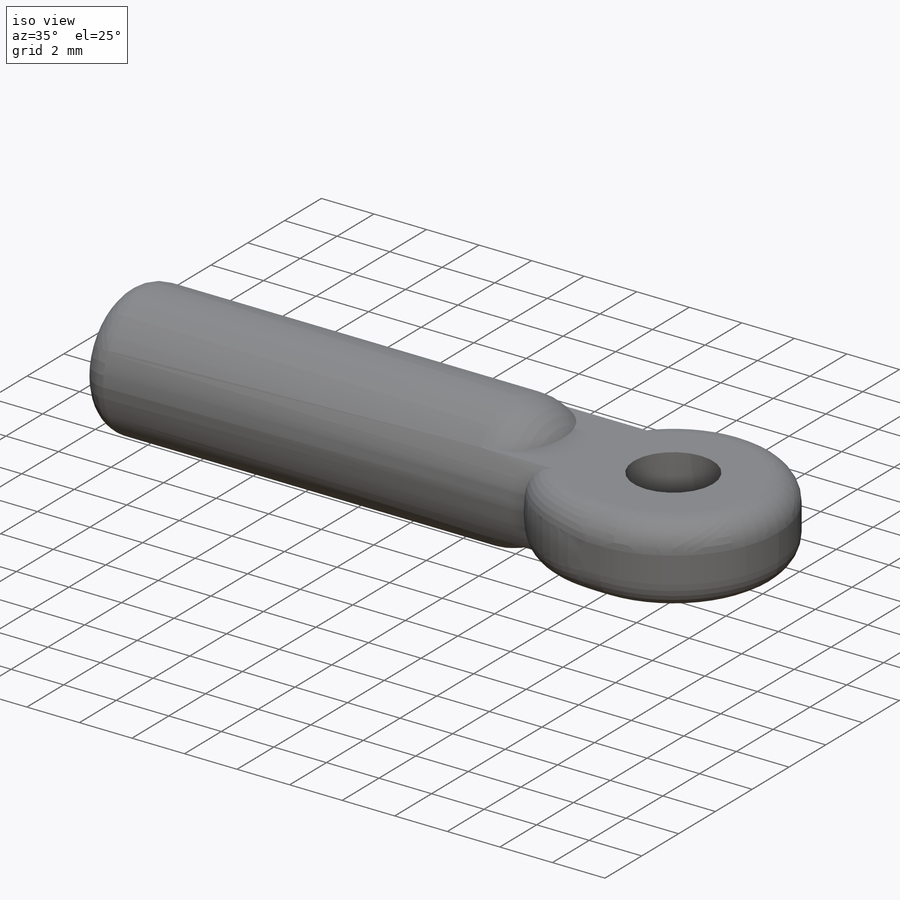
[diagram: iso view]
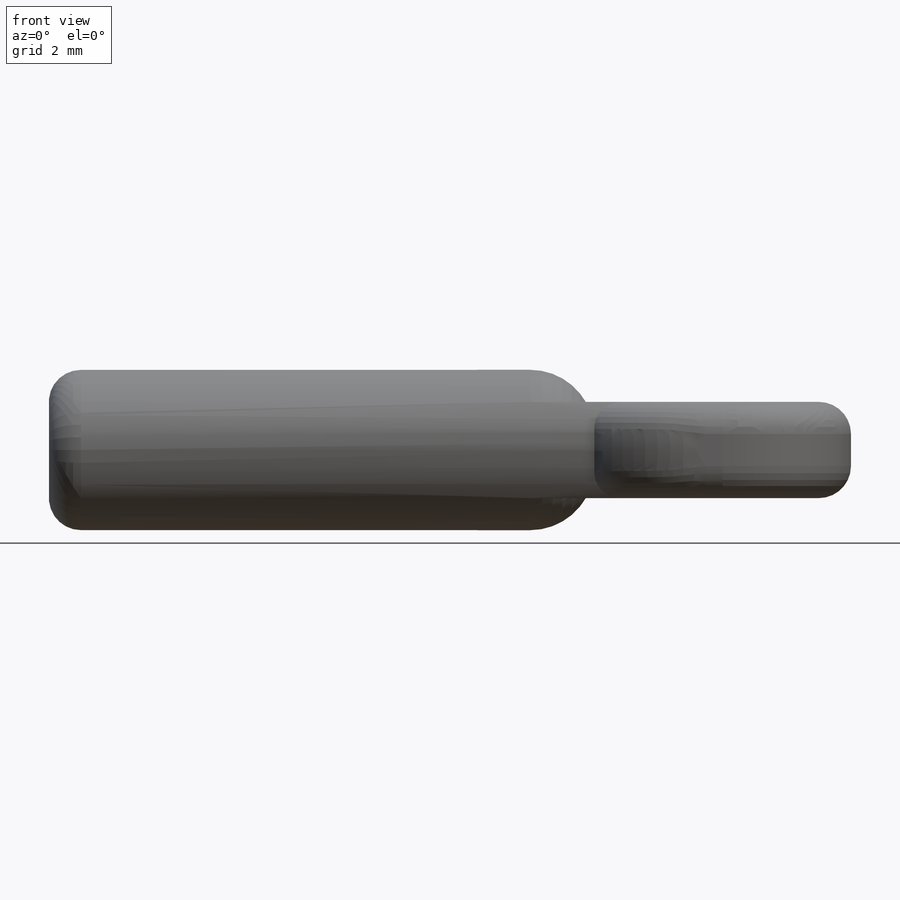
[diagram: front view]
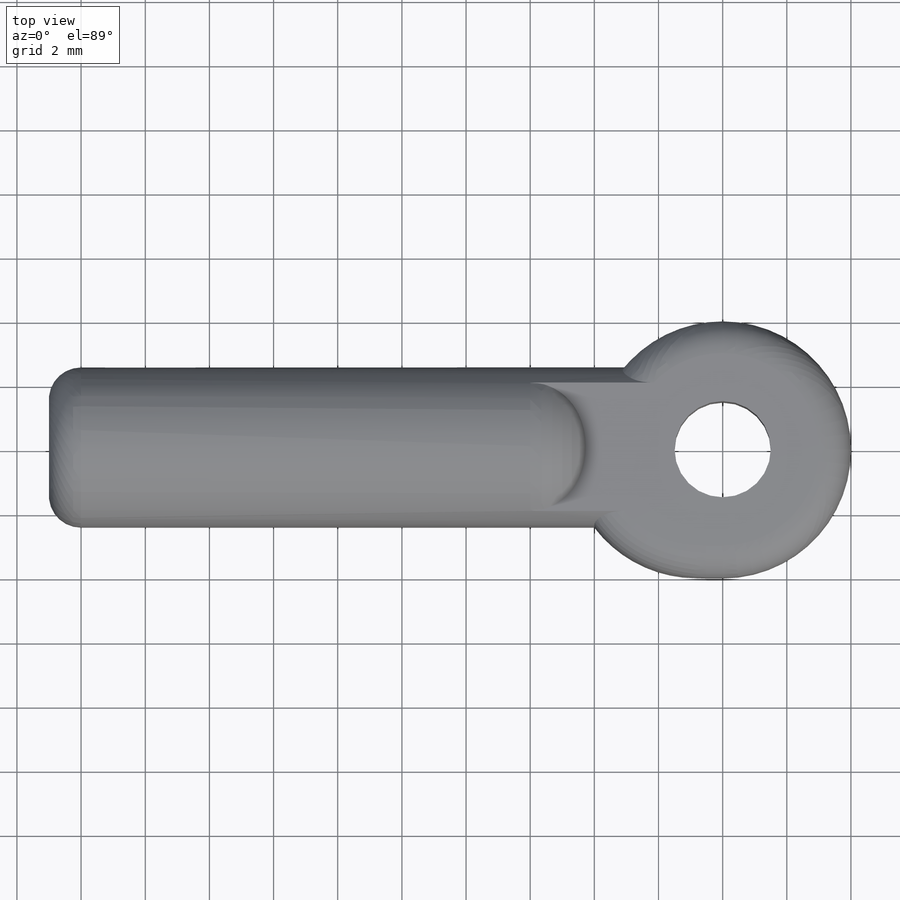
[diagram: top view]
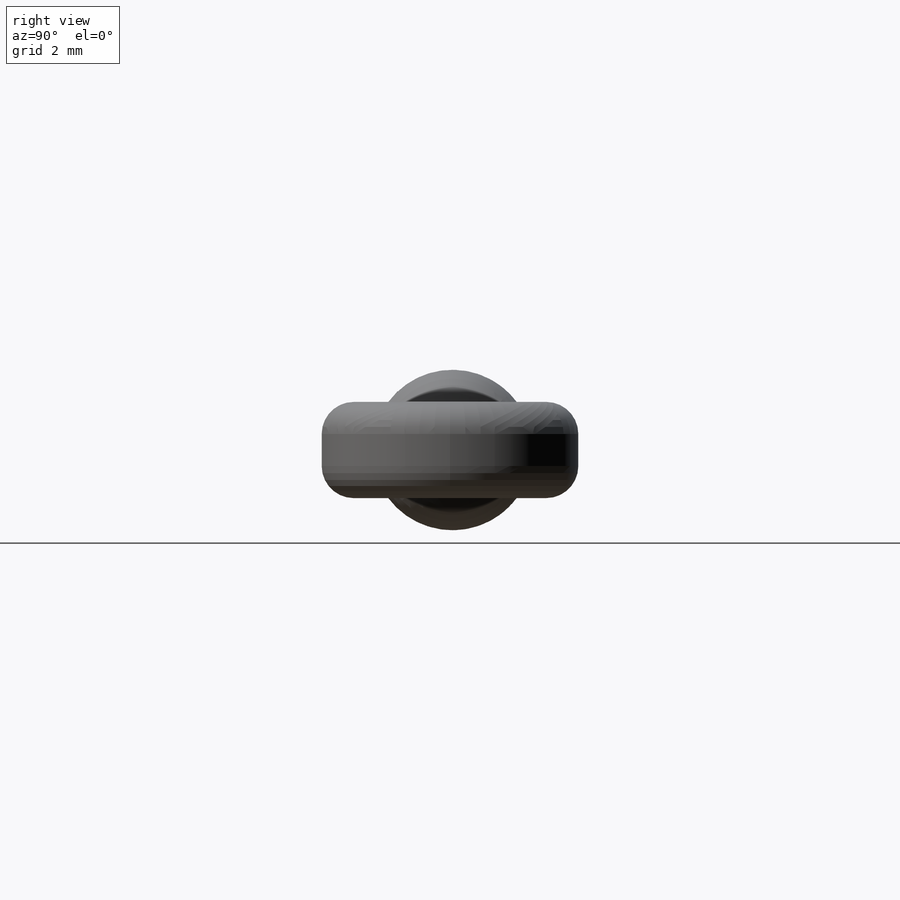
[diagram: right view]
SOLIDWORKS PART (.sldprt)
format: sldprt  version: not decoded by parser v0  size: 278,016 bytes
history: native  units: mm
features: fillet x5, plane x3, sketch x3, extrude x2, material x1, cut_extrude x1 (+9 scaffold rows collapsed)
feature tree (24):
  scaffold x9  (default folders/planes/origin — collapsed)
  material  "PF"
  plane  "Plan de face"
  plane  "Plan de dessus"
  plane  "Plan de droite"
  sketch  "Esquisse1"  dims[D5=3.0mm D1=8.0mm D2=8.0mm D3=4.0mm D4=4.0mm]
  extrude  "Boss.-Extru.1"  Depth=3mm
  fillet  "Congé1"  Radius=4mm
  sketch  "Esquisse2"  dims[c1.D1=5.0mm c1.D2=1.0mm c1.D3=2.5mm c1.D4=5.0mm c2.D2=1.5mm]
  extrude  "Boss.-Extru.2"  Depth=17mm
  fillet  "Congé2"  Radius=4mm
  fillet  "Congé3"  Radius=2mm
  sketch  "Esquisse3"  dims[D1=3.2mm D2=0.0mm]
  cut_extrude  "Enlèv. mat.-Extru.1"  Depth=15mm
  fillet  "Congé5"  Radius=1mm
  fillet  "Congé6"  Radius=1mm
decode coverage: 11 of 11 modeling features carry decoded parameters
note: suppression state not decoded; provenance and decode notes live in map.json
